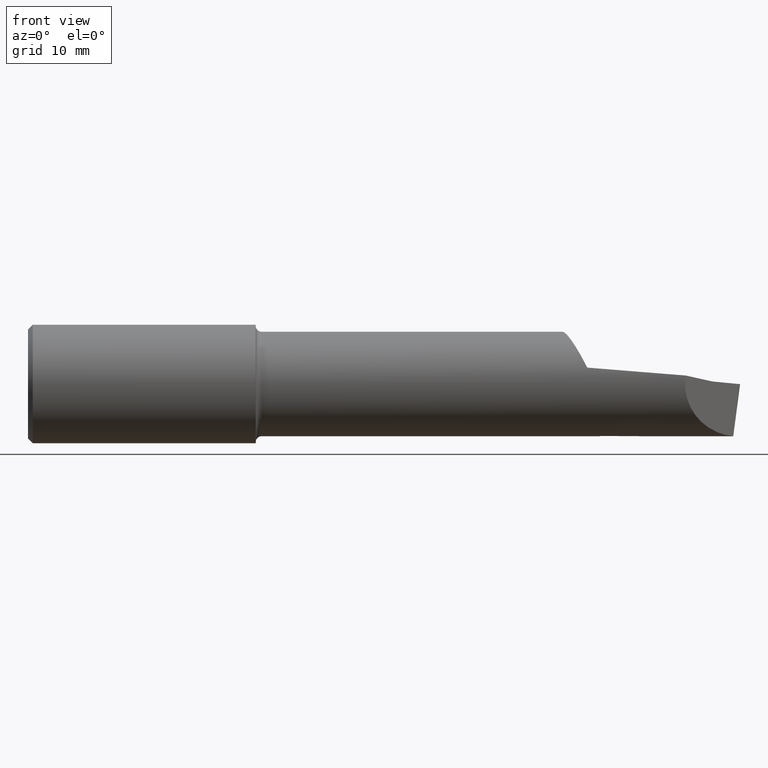
[diagram: clean part render]
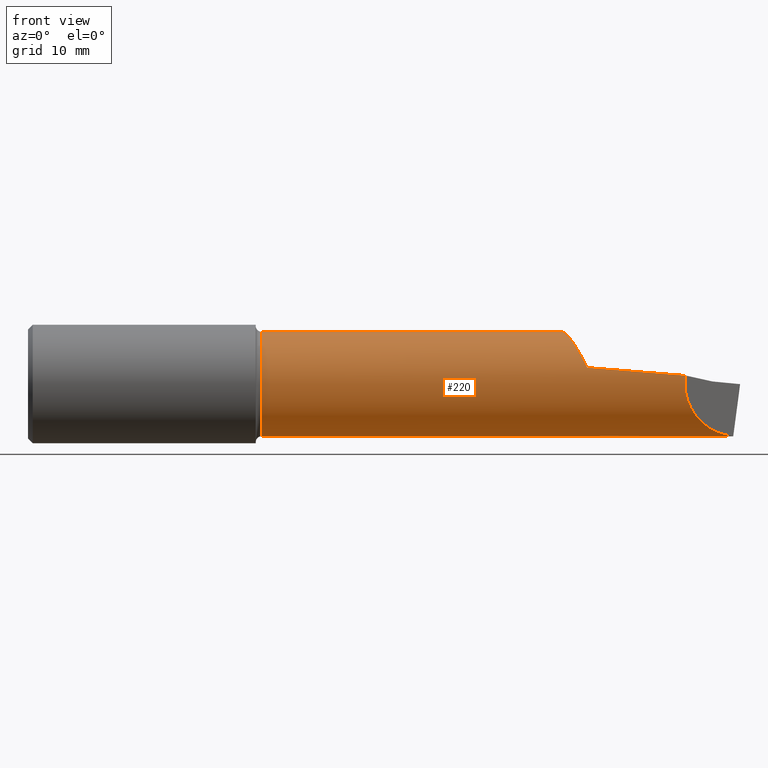
[diagram: same view with one face highlighted and labeled with its STEP entity id]
A machine part, front view. The second image highlights one B-rep face of the part: STEP entity #220.
In plain terms, the highlighted cylindrical surface (partial cylindrical patch) has radius 5.588 mm, axis along (-1, -0, -0).
Its self-contained STEP definition (entity closure, byte-faithful):
#6 = EDGE_CURVE ( 'NONE', #518, #96, #425, .T. ) ;
#7 = CARTESIAN_POINT ( 'NONE',  ( 0.000000000000000000, 0.000000000000000000, 0.2199999999999999734 ) ) ;
#9 = CARTESIAN_POINT ( 'NONE',  ( 2.564429700643780841, -0.2143015012764732941, 0.05261254719292924459 ) ) ;
#19 = CARTESIAN_POINT ( 'NONE',  ( 2.283226719027449558, -0.1059187799789651496, 0.1929277633858682006 ) ) ;
#22 = CARTESIAN_POINT ( 'NONE',  ( 2.748939529771277979, -0.2394126230373499198, -0.1000115783150166138 ) ) ;
#29 = CARTESIAN_POINT ( 'NONE',  ( 2.291331261531611485, -0.1239598244847214398, 0.1817528458976704064 ) ) ;
#35 = ORIENTED_EDGE ( 'NONE', *, *, #176, .T. ) ;
#37 = DIRECTION ( 'NONE',  ( 1.000000000000000000, -0.000000000000000000, -0.000000000000000000 ) ) ;
#39 = EDGE_CURVE ( 'NONE', #96, #718, #306, .T. ) ;
#49 = EDGE_CURVE ( 'NONE', #518, #754, #505, .T. ) ;
#51 = EDGE_LOOP ( 'NONE', ( #178, #349, #78, #35, #297, #628, #529, #92, #365, #577 ) ) ;
#57 = CARTESIAN_POINT ( 'NONE',  ( 2.356559098504054095, -0.2088777642239234011, 0.06906576061805747013 ) ) ;
#62 = CARTESIAN_POINT ( 'NONE',  ( 2.970822649411938077, -0.01752950339669018254, -0.2193005164395774864 ) ) ;
#67 = DIRECTION ( 'NONE',  ( -1.000000000000000000, -0.000000000000000000, -0.000000000000000000 ) ) ;
#78 = ORIENTED_EDGE ( 'NONE', *, *, #236, .T. ) ;
#79 = CARTESIAN_POINT ( 'NONE',  ( 2.256435488265876810, -0.02101578052564569143, 0.2199999835917510471 ) ) ;
#87 = VERTEX_POINT ( 'NONE', #542 ) ;
#92 = ORIENTED_EDGE ( 'NONE', *, *, #39, .T. ) ;
#96 = VERTEX_POINT ( 'NONE', #373 ) ;
#111 = VERTEX_POINT ( 'NONE', #135 ) ;
#112 = CARTESIAN_POINT ( 'NONE',  ( 2.970889738018301252, 0.000000000000000000, -0.2200000000000000566 ) ) ;
#135 = CARTESIAN_POINT ( 'NONE',  ( 2.410000000000000142, 2.694222958124177561E-17, -0.2200000000000000011 ) ) ;
#139 = AXIS2_PLACEMENT_3D ( 'NONE', #620, #279, #736 ) ;
#148 = CARTESIAN_POINT ( 'NONE',  ( 2.595439364798721726, 3.734948428837859484E-18, -0.2200000000000000566 ) ) ;
#151 = VECTOR ( 'NONE', #466, 39.37007874015748143 ) ;
#154 = CARTESIAN_POINT ( 'NONE',  ( 2.410000000000000142, 0.000000000000000000, -0.2200000000000000566 ) ) ;
#171 = CARTESIAN_POINT ( 'NONE',  ( 0.000000000000000000, 2.694222958124176637E-17, -0.2199999999999999734 ) ) ;
#176 = EDGE_CURVE ( 'NONE', #733, #646, #333, .T. ) ;
#178 = ORIENTED_EDGE ( 'NONE', *, *, #700, .F. ) ;
#187 = EDGE_CURVE ( 'NONE', #556, #87, #473, .T. ) ;
#196 = CARTESIAN_POINT ( 'NONE',  ( 2.286194494552778345, -0.1128910208792930636, 0.1889741111404043827 ) ) ;
#204 = CARTESIAN_POINT ( 'NONE',  ( 2.833707386268460748, -0.1546447665401669003, -0.2083403850635354160 ) ) ;
#208 = CARTESIAN_POINT ( 'NONE',  ( 0.9845250382262700217, 2.694222958124176637E-17, -0.2199999999999999734 ) ) ;
#220 = ADVANCED_FACE ( 'NONE', ( #272 ), #749, .T. ) ;
#229 = CARTESIAN_POINT ( 'NONE',  ( 2.970822649411938077, -0.01752950339669018254, -0.2193005164395774864 ) ) ;
#233 = CARTESIAN_POINT ( 'NONE',  ( 2.357725844419105599, -0.2089080893730914379, 0.06897406050240462161 ) ) ;
#236 = EDGE_CURVE ( 'NONE', #677, #733, #442, .T. ) ;
#252 = CARTESIAN_POINT ( 'NONE',  ( 2.970822649411938077, -0.01752950339669018254, -0.2193005164395774864 ) ) ;
#267 = CARTESIAN_POINT ( 'NONE',  ( 2.410000000000000142, -0.02232082031225495616, -0.2188647549985790752 ) ) ;
#272 = FACE_OUTER_BOUND ( 'NONE', #51, .T. ) ;
#279 = DIRECTION ( 'NONE',  ( -1.000000000000000000, -0.000000000000000000, -0.000000000000000000 ) ) ;
#284 = CARTESIAN_POINT ( 'NONE',  ( 2.343568907379045552, -0.2004185357093115072, 0.09466616758537160781 ) ) ;
#286 = CARTESIAN_POINT ( 'NONE',  ( 2.253048836201134275, -1.183062825732959087E-06, 0.2200124226379089609 ) ) ;
#297 = ORIENTED_EDGE ( 'NONE', *, *, #720, .F. ) ;
#299 = CARTESIAN_POINT ( 'NONE',  ( 2.410000000000000142, 0.000000000000000000, 0.000000000000000000 ) ) ;
#305 = CARTESIAN_POINT ( 'NONE',  ( 2.301763750540529507, -0.1449087477148430780, 0.1665523849273800039 ) ) ;
#306 = B_SPLINE_CURVE_WITH_KNOTS ( 'NONE', 3,
 ( #57, #284, #413, #721, #305, #310, #725, #29, #601, #489, #547, #361, #605, #196, #19, #368, #599, #660, #79, #432 ),
 .UNSPECIFIED., .F., .F.,
 ( 4, 2, 2, 1, 1, 2, 2, 1, 1, 2, 2, 4 ),
 ( 0.000000000000000000, 0.2319181769988921948, 0.4638363539977843897, 0.4928261261226460910, 0.4964498476382536163, 0.4982617083960568238, 0.5000735691538600314, 0.5073210121850736387, 0.5218158982475015195, 0.5797954424972110443, 0.6957545309966309821, 0.9276727079954698585 ),
 .UNSPECIFIED. ) ;
#310 = CARTESIAN_POINT ( 'NONE',  ( 2.293395547304613480, -0.1282223768002852815, 0.1787856457334612570 ) ) ;
#333 = LINE ( 'NONE', #154, #535 ) ;
#349 = ORIENTED_EDGE ( 'NONE', *, *, #421, .T. ) ;
#356 = AXIS2_PLACEMENT_3D ( 'NONE', #689, #514, #623 ) ;
#361 = CARTESIAN_POINT ( 'NONE',  ( 2.290623232216533633, -0.1224700767580412242, 0.1827614645761385104 ) ) ;
#364 = CARTESIAN_POINT ( 'NONE',  ( 2.771270714435557725, -0.2170814383730694797, 0.03571623039850647247 ) ) ;
#365 = ORIENTED_EDGE ( 'NONE', *, *, #369, .T. ) ;
#368 = CARTESIAN_POINT ( 'NONE',  ( 2.276456940788355254, -0.08905058601310969491, 0.2015679351482911608 ) ) ;
#369 = EDGE_CURVE ( 'NONE', #718, #87, #591, .T. ) ;
#373 = CARTESIAN_POINT ( 'NONE',  ( 2.356559098504054095, -0.2088777642239234011, 0.06906576061805747013 ) ) ;
#395 = AXIS2_PLACEMENT_3D ( 'NONE', #299, #67, #697 ) ;
#413 = CARTESIAN_POINT ( 'NONE',  ( 2.331611175002787473, -0.1879456397189699923, 0.1165832106559144127 ) ) ;
#416 = CARTESIAN_POINT ( 'NONE',  ( 2.358974358974360364, -0.2089406661879938953, 0.06887523512059520736 ) ) ;
#421 = EDGE_CURVE ( 'NONE', #111, #677, #748, .T. ) ;
#425 =( BOUNDED_CURVE ( )  B_SPLINE_CURVE ( 2, ( #478, #9, #416, #233, #649 ),
 .UNSPECIFIED., .F., .T. ) 
 B_SPLINE_CURVE_WITH_KNOTS ( ( 3, 2, 3 ),
 ( 0.1786485734947635962, 0.5000000000000000000, 0.5019619316750536520 ),
 .UNSPECIFIED. ) 
 CURVE ( )  GEOMETRIC_REPRESENTATION_ITEM ( )  RATIONAL_B_SPLINE_CURVE ( ( 0.9929648280793845760, 0.9916323561610864701, 0.9963010501997409119, 0.9962725466427000409, 0.9962442667737847479 ) ) 
 REPRESENTATION_ITEM ( '' )  );
#432 = CARTESIAN_POINT ( 'NONE',  ( 2.253048836201134275, -1.183062825732959087E-06, 0.2200124226379089609 ) ) ;
#442 = B_SPLINE_CURVE_WITH_KNOTS ( 'NONE', 3,
 ( #267, #509, #676, #148 ),
 .UNSPECIFIED., .F., .F.,
 ( 4, 4 ),
 ( 0.000000000000000000, 0.004744245821505132382 ),
 .UNSPECIFIED. ) ;
#463 = CARTESIAN_POINT ( 'NONE',  ( 2.410000000000000142, -0.02232082031225495616, -0.2188647549985790752 ) ) ;
#466 = DIRECTION ( 'NONE',  ( -1.000000000000000000, -0.000000000000000000, -0.000000000000000000 ) ) ;
#473 = CIRCLE ( 'NONE', #139, 0.2199999999999999734 ) ;
#478 = CARTESIAN_POINT ( 'NONE',  ( 2.771270714435557725, -0.2170814383730694797, 0.03571623039850647247 ) ) ;
#489 = CARTESIAN_POINT ( 'NONE',  ( 2.291057892820142161, -0.1233858508182214264, 0.1821426667538936228 ) ) ;
#505 =( BOUNDED_CURVE ( )  B_SPLINE_CURVE ( 3, ( #364, #22, #204, #252 ),
 .UNSPECIFIED., .F., .T. ) 
 B_SPLINE_CURVE_WITH_KNOTS ( ( 4, 4 ),
 ( 6.120117067556848589, 7.774217519258906250 ),
 .UNSPECIFIED. ) 
 CURVE ( )  GEOMETRIC_REPRESENTATION_ITEM ( )  RATIONAL_B_SPLINE_CURVE ( ( 1.000000000000000000, 0.7846997011302692115, 0.7846997011302692115, 1.000000000000000000 ) ) 
 REPRESENTATION_ITEM ( '' )  );
#509 = CARTESIAN_POINT ( 'NONE',  ( 2.471819322563090893, -0.01495104440665229184, -0.2196163581689095923 ) ) ;
#514 = DIRECTION ( 'NONE',  ( -1.000000000000000000, -0.000000000000000000, -0.000000000000000000 ) ) ;
#516 = CARTESIAN_POINT ( 'NONE',  ( 2.970816303086415644, -0.01169718663061289007, -0.2197667151436271393 ) ) ;
#518 = VERTEX_POINT ( 'NONE', #713 ) ;
#529 = ORIENTED_EDGE ( 'NONE', *, *, #6, .T. ) ;
#535 = VECTOR ( 'NONE', #37, 39.37007874015748143 ) ;
#542 = CARTESIAN_POINT ( 'NONE',  ( 0.9845250382262700217, 0.000000000000000000, 0.2199999999999999734 ) ) ;
#547 = CARTESIAN_POINT ( 'NONE',  ( 2.291026367974280387, -0.1233195885780028478, 0.1821875986796248903 ) ) ;
#556 = VERTEX_POINT ( 'NONE', #208 ) ;
#577 = ORIENTED_EDGE ( 'NONE', *, *, #187, .F. ) ;
#579 = DIRECTION ( 'NONE',  ( -1.000000000000000000, -0.000000000000000000, -0.000000000000000000 ) ) ;
#584 =( BOUNDED_CURVE ( )  B_SPLINE_CURVE ( 3, ( #229, #516, #742, #752 ),
 .UNSPECIFIED., .F., .F. ) 
 B_SPLINE_CURVE_WITH_KNOTS ( ( 4, 4 ),
 ( 6.274373815428443635, 6.354137930144020174 ),
 .UNSPECIFIED. ) 
 CURVE ( )  GEOMETRIC_REPRESENTATION_ITEM ( )  RATIONAL_B_SPLINE_CURVE ( ( 1.000000000000000000, 0.9994698774393541152, 0.9994698774393541152, 1.000000000000000000 ) ) 
 REPRESENTATION_ITEM ( '' )  );
#591 = LINE ( 'NONE', #7, #716 ) ;
#599 = CARTESIAN_POINT ( 'NONE',  ( 2.272414265991218763, -0.07762841386095720164, 0.2061942163186629151 ) ) ;
#601 = CARTESIAN_POINT ( 'NONE',  ( 2.291167129969537530, -0.1236153981034040783, 0.1819869571867535896 ) ) ;
#605 = CARTESIAN_POINT ( 'NONE',  ( 2.289661220195152502, -0.1204269891560903888, 0.1841250165428739982 ) ) ;
#620 = CARTESIAN_POINT ( 'NONE',  ( 0.9845250382262700217, 0.000000000000000000, 0.000000000000000000 ) ) ;
#623 = DIRECTION ( 'NONE',  ( 0.000000000000000000, 0.000000000000000000, 1.000000000000000000 ) ) ;
#628 = ORIENTED_EDGE ( 'NONE', *, *, #49, .F. ) ;
#646 = VERTEX_POINT ( 'NONE', #112 ) ;
#649 = CARTESIAN_POINT ( 'NONE',  ( 2.356559098504054095, -0.2088777642239234011, 0.06906576061805747013 ) ) ;
#660 = CARTESIAN_POINT ( 'NONE',  ( 2.261697773686589752, -0.04351199093201112839, 0.2169691419821609124 ) ) ;
#676 = CARTESIAN_POINT ( 'NONE',  ( 2.533631329115601183, -0.007501773097154005102, -0.2200000000000000566 ) ) ;
#677 = VERTEX_POINT ( 'NONE', #463 ) ;
#689 = CARTESIAN_POINT ( 'NONE',  ( 0.000000000000000000, 0.000000000000000000, 0.000000000000000000 ) ) ;
#697 = DIRECTION ( 'NONE',  ( 0.000000000000000000, 0.000000000000000000, 1.000000000000000000 ) ) ;
#700 = EDGE_CURVE ( 'NONE', #111, #556, #756, .T. ) ;
#713 = CARTESIAN_POINT ( 'NONE',  ( 2.771270714435557725, -0.2170814383730694797, 0.03571623039850647247 ) ) ;
#716 = VECTOR ( 'NONE', #579, 39.37007874015748143 ) ;
#718 = VERTEX_POINT ( 'NONE', #286 ) ;
#720 = EDGE_CURVE ( 'NONE', #754, #646, #584, .T. ) ;
#721 = CARTESIAN_POINT ( 'NONE',  ( 2.310708596583529228, -0.1601832435777485741, 0.1525009408925921128 ) ) ;
#725 = CARTESIAN_POINT ( 'NONE',  ( 2.292376002346411035, -0.1261431576479062622, 0.1802597226350384774 ) ) ;
#733 = VERTEX_POINT ( 'NONE', #745 ) ;
#736 = DIRECTION ( 'NONE',  ( 0.000000000000000000, 0.000000000000000000, 1.000000000000000000 ) ) ;
#742 = CARTESIAN_POINT ( 'NONE',  ( 2.970838677816553641, -0.005850919593664222380, -0.2199999999999999456 ) ) ;
#745 = CARTESIAN_POINT ( 'NONE',  ( 2.595439364798721726, 3.734948428837859484E-18, -0.2200000000000000566 ) ) ;
#748 = CIRCLE ( 'NONE', #395, 0.2200000000000000011 ) ;
#749 = CYLINDRICAL_SURFACE ( 'NONE', #356, 0.2199999999999999734 ) ;
#752 = CARTESIAN_POINT ( 'NONE',  ( 2.970889738018301252, 0.000000000000000000, -0.2200000000000000566 ) ) ;
#754 = VERTEX_POINT ( 'NONE', #62 ) ;
#756 = LINE ( 'NONE', #171, #151 ) ;